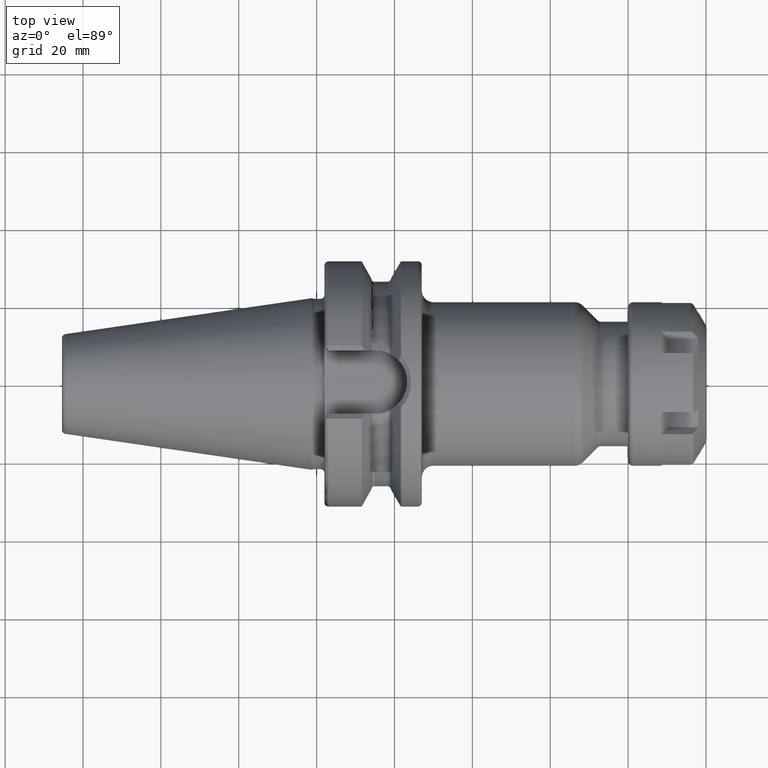
[diagram: clean part render]
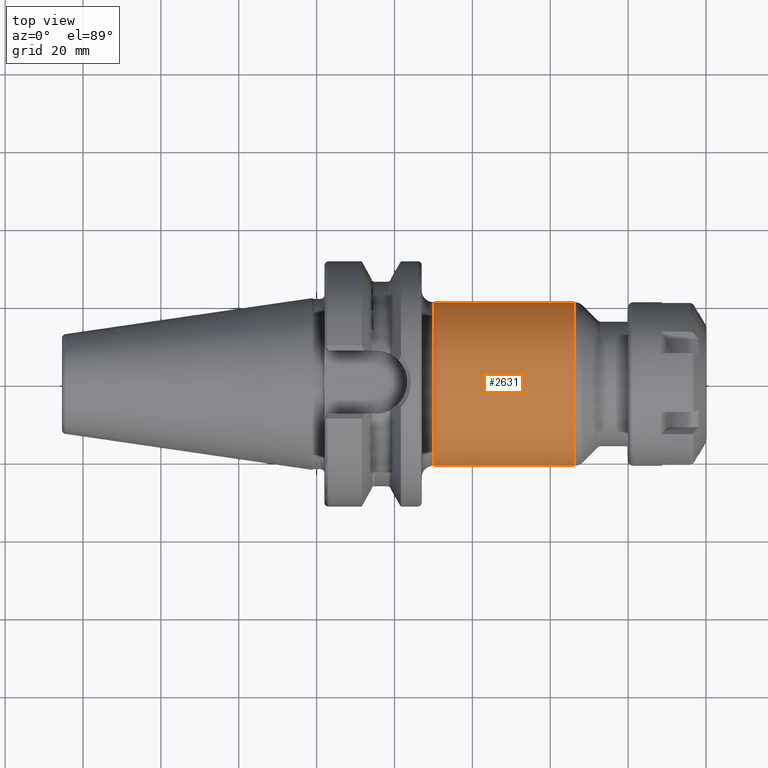
[diagram: same view with one face highlighted and labeled with its STEP entity id]
A machine part, top view. The second image highlights one B-rep face of the part: STEP entity #2631.
In plain terms, the highlighted cylindrical surface (partial cylindrical patch) has radius 21 mm, axis along (1, 0, 0).
Its self-contained STEP definition (entity closure, byte-faithful):
#856=CARTESIAN_POINT('',(6.625735931288E1,0.E0,0.E0));
#857=DIRECTION('',(-1.E0,0.E0,0.E0));
#858=DIRECTION('',(0.E0,-1.E0,0.E0));
#859=AXIS2_PLACEMENT_3D('',#856,#857,#858);
#861=CARTESIAN_POINT('',(3.E1,0.E0,0.E0));
#862=DIRECTION('',(1.E0,0.E0,0.E0));
#863=DIRECTION('',(0.E0,1.E0,0.E0));
#864=AXIS2_PLACEMENT_3D('',#861,#862,#863);
#881=DIRECTION('',(-1.E0,0.E0,1.458693879415E-13));
#882=VECTOR('',#881,3.625735931288E1);
#883=CARTESIAN_POINT('',(6.625735931288E1,2.1E1,-3.840092724958E-12));
#884=LINE('',#883,#882);
#890=DIRECTION('',(-1.E0,0.E0,-1.458662234535E-13));
#891=VECTOR('',#890,3.625735931288E1);
#892=CARTESIAN_POINT('',(6.625735931288E1,-2.1E1,3.839432193923E-12));
#893=LINE('',#892,#891);
#1469=CARTESIAN_POINT('',(3.E1,-2.1E1,0.E0));
#1470=CARTESIAN_POINT('',(3.E1,2.1E1,0.E0));
#1471=VERTEX_POINT('',#1469);
#1472=VERTEX_POINT('',#1470);
#1481=CARTESIAN_POINT('',(6.625735931288E1,2.1E1,0.E0));
#1482=CARTESIAN_POINT('',(6.625735931288E1,-2.1E1,0.E0));
#1483=VERTEX_POINT('',#1481);
#1484=VERTEX_POINT('',#1482);
#2617=CARTESIAN_POINT('',(2.395E1,0.E0,0.E0));
#2618=DIRECTION('',(1.E0,0.E0,0.E0));
#2619=DIRECTION('',(0.E0,-1.E0,0.E0));
#2620=AXIS2_PLACEMENT_3D('',#2617,#2618,#2619);
#2621=CYLINDRICAL_SURFACE('',#2620,2.1E1);
#2623=ORIENTED_EDGE('',*,*,#2622,.F.);
#2625=ORIENTED_EDGE('',*,*,#2624,.T.);
#2626=ORIENTED_EDGE('',*,*,#2611,.F.);
#2628=ORIENTED_EDGE('',*,*,#2627,.F.);
#2629=EDGE_LOOP('',(#2623,#2625,#2626,#2628));
#2630=FACE_OUTER_BOUND('',#2629,.F.);
#2631=ADVANCED_FACE('',(#2630),#2621,.T.);
#860=CIRCLE('',#859,2.1E1);
#865=CIRCLE('',#864,2.1E1);
#2611=EDGE_CURVE('',#1472,#1471,#865,.T.);
#2622=EDGE_CURVE('',#1484,#1483,#860,.T.);
#2624=EDGE_CURVE('',#1484,#1471,#893,.T.);
#2627=EDGE_CURVE('',#1483,#1472,#884,.T.);